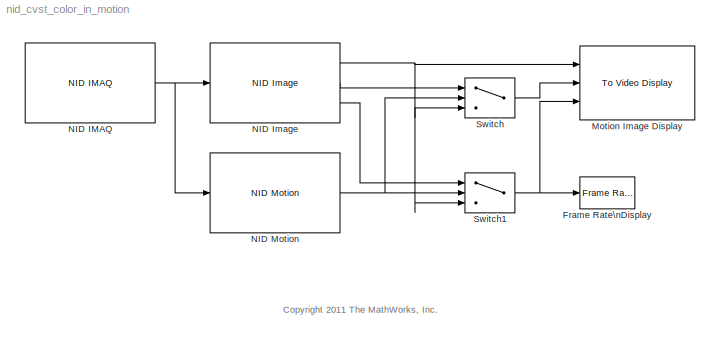
MODEL nid_cvst_color_in_motion
KIND model
BLOCK [Reference] Frame Rate\nDisplay  REF=vipsnks/Frame Rate\nDisplay
  DialogController = vipDDGCreate
  DialogControllerArgs = DataTag0
  Ports = [1]
  SID = 113
  SourceBlock = vipsnks/Frame Rate\nDisplay
  SourceType = Frame Rate Display
  UpdateRate = 10
BLOCK [Reference] Motion Image Display  REF=vipsnks/To Video Display
  DialogControllerArgs = DataTag1
  OutputDevice = On-screen video monitor
  Ports = [3]
  SID = 120
  SourceBlock = vipsnks/To Video Display
  SourceType = To Video Display
  dataOrg = Column-major
  fullScreen = off
  imagePorts = Separate color signals
  inputType = Obsolete
  isWindowOpen = on
  openAtMdlStart = on
  saveWindowSize = off
  videoWindowHeight = 480
  videoWindowWidth = 640
  videoWindowX = 840
  videoWindowY = 43
BLOCK [Reference] NID IMAQ  REF=nid_lib/NID IMAQ
  Ports = [0, 1]
  SID = 105
  SourceBlock = nid_lib/NID IMAQ
  SourceType = NID IMAQ
  angle = 0
  angle_read = off
  imaq_depth = off
  imaq_image = on
  imaq_ir = off
  imaq_motion = on
  imaq_sample_time = 1/30
  imaq_skeleton = off
  mirror_image = off
  near_mode = off
  res_fps = VGA (640x480): 30 FPS
  view_point = on
BLOCK [Reference] NID Image  REF=nid_lib/NID Image
  Ports = [1, 3]
  SID = 106
  SourceBlock = nid_lib/NID Image
  SourceType = NID Image
  imageOutput = R/G/B
BLOCK [Reference] NID Motion  REF=nid_lib/NID Motion
  Ports = [1, 1]
  SID = 118
  SourceBlock = nid_lib/NID Motion
  SourceType = NID Motion
  viewer = off
BLOCK [Switch] Switch
  Criteria = u2 > Threshold
  InputSameDT = off
  SID = 130
  SaturateOnIntegerOverflow = off
BLOCK [Switch] Switch1
  Criteria = u2 > Threshold
  InputSameDT = off
  SID = 131
  SaturateOnIntegerOverflow = off
ANNOTATION (root): <copyright redacted>
NET NID IMAQ:1 -> NID Image:1, NID Motion:1
NET NID Image:1 -> Motion Image Display:1, Switch1:3, Switch:3
LINE NID Image:2 -> Switch:1
LINE NID Image:3 -> Switch1:1
NET NID Motion:1 -> Switch1:2, Switch:2
NET Switch1:1 -> Frame Rate\nDisplay:1, Motion Image Display:3
LINE Switch:1 -> Motion Image Display:2
note: NET lines group one-source signal fan-out (src -> all destinations, sorted); 1:1 wires keep LINE
